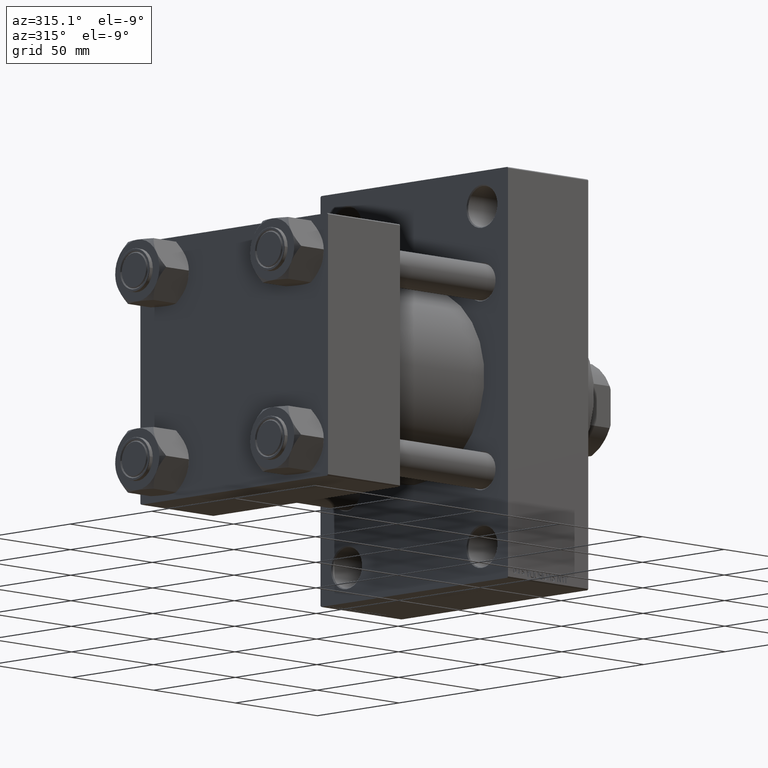
[diagram: clean part render]
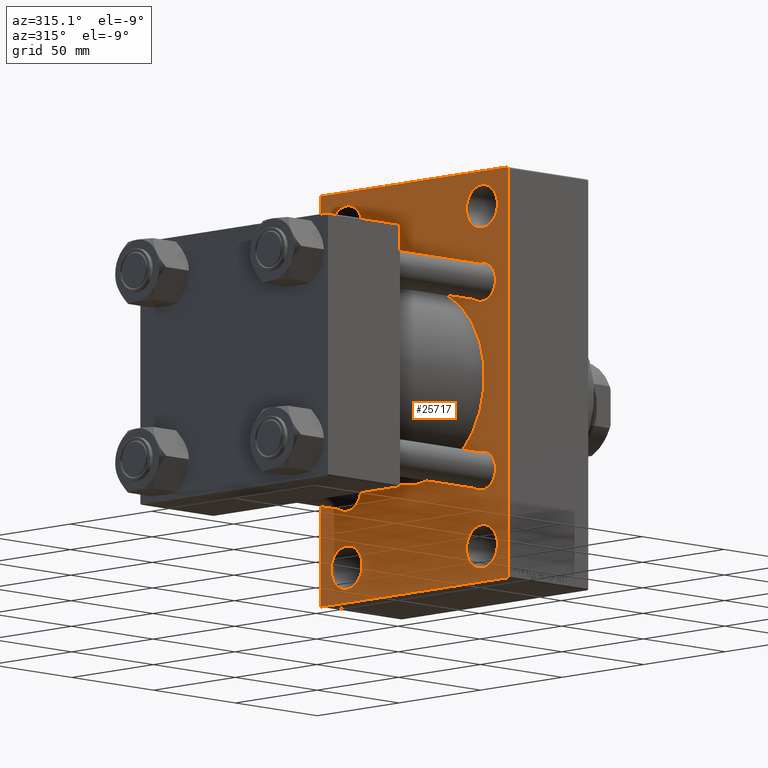
[diagram: same view with one face highlighted and labeled with its STEP entity id]
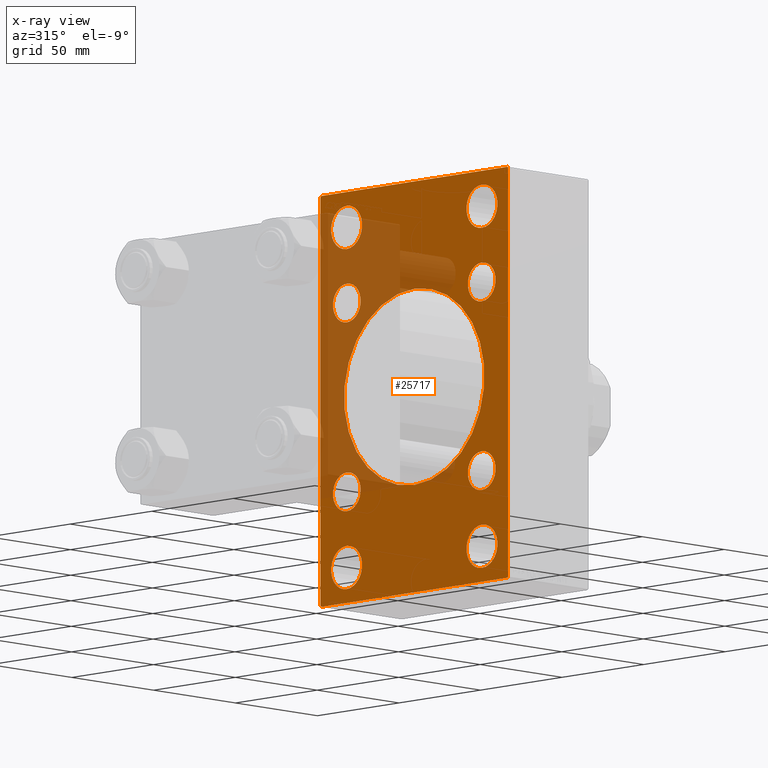
[diagram: x-ray of the same camera — body ghosted, the highlighted face saturated]
A machine part, auxiliary view. The second image highlights one B-rep face of the part: STEP entity #25717.
The next image is the same camera in x-ray: the body ghosted, the highlighted face saturated — about 29% of this face is hidden behind the body in this view.
In plain terms, the highlighted planar face has unit normal (-1, 0, 0).
Its self-contained STEP definition (entity closure, byte-faithful):
#127 = VECTOR ( 'NONE', #39006, 1000.000000000000000 ) ;
#258 = EDGE_CURVE ( 'NONE', #15630, #47628, #19418, .T. ) ;
#456 = CARTESIAN_POINT ( 'NONE',  ( 110.0000000000000000, -57.50000000000002132, 89.99999999999997158 ) ) ;
#541 = CARTESIAN_POINT ( 'NONE',  ( 110.0000000000000000, -2.602085213965210642E-15, 0.000000000000000000 ) ) ;
#705 = AXIS2_PLACEMENT_3D ( 'NONE', #22196, #3287, #29755 ) ;
#723 = CARTESIAN_POINT ( 'NONE',  ( 110.0000000000000000, 41.50000000000000711, 84.00000000000004263 ) ) ;
#919 = EDGE_LOOP ( 'NONE', ( #44951, #48679 ) ) ;
#965 = CARTESIAN_POINT ( 'NONE',  ( 110.0000000000000000, 57.49999999999997868, -89.49999999999990052 ) ) ;
#1277 = CIRCLE ( 'NONE', #11732, 8.500000000000007105 ) ;
#1500 = EDGE_CURVE ( 'NONE', #43542, #47628, #22656, .T. ) ;
#1765 = VERTEX_POINT ( 'NONE', #12989 ) ;
#1771 = CARTESIAN_POINT ( 'NONE',  ( 110.0000000000000000, 41.34999999999999432, -41.35000000000000142 ) ) ;
#1892 = VERTEX_POINT ( 'NONE', #16778 ) ;
#2313 = EDGE_CURVE ( 'NONE', #43542, #4402, #23711, .T. ) ;
#2659 = VERTEX_POINT ( 'NONE', #41440 ) ;
#2733 = ORIENTED_EDGE ( 'NONE', *, *, #19943, .T. ) ;
#2785 = CARTESIAN_POINT ( 'NONE',  ( 110.0000000000000000, 41.50000000000000711, -84.00000000000002842 ) ) ;
#2976 = DIRECTION ( 'NONE',  ( 0.000000000000000000, 0.000000000000000000, 1.000000000000000000 ) ) ;
#2995 = AXIS2_PLACEMENT_3D ( 'NONE', #42604, #35061, #42110 ) ;
#3216 = VERTEX_POINT ( 'NONE', #3713 ) ;
#3287 = DIRECTION ( 'NONE',  ( 1.000000000000000000, 0.000000000000000000, 0.000000000000000000 ) ) ;
#3698 = EDGE_CURVE ( 'NONE', #33412, #18731, #10149, .T. ) ;
#3713 = CARTESIAN_POINT ( 'NONE',  ( 110.0000000000000000, -41.49999999999999289, 64.99999999999997158 ) ) ;
#3907 = ORIENTED_EDGE ( 'NONE', *, *, #31876, .T. ) ;
#3925 = AXIS2_PLACEMENT_3D ( 'NONE', #25284, #43912, #9413 ) ;
#3981 = LINE ( 'NONE', #38489, #48590 ) ;
#4060 = CARTESIAN_POINT ( 'NONE',  ( 110.0000000000000000, 57.49999999999997868, -90.00000000000000000 ) ) ;
#4268 = CIRCLE ( 'NONE', #49270, 43.00000000000000000 ) ;
#4360 = CARTESIAN_POINT ( 'NONE',  ( 110.0000000000000000, -41.49999999999999289, -84.00000000000001421 ) ) ;
#4402 = VERTEX_POINT ( 'NONE', #19585 ) ;
#4692 = EDGE_CURVE ( 'NONE', #1892, #47810, #4268, .T. ) ;
#4845 = ORIENTED_EDGE ( 'NONE', *, *, #36340, .T. ) ;
#5544 = CIRCLE ( 'NONE', #3925, 8.500000000000007105 ) ;
#6816 = CARTESIAN_POINT ( 'NONE',  ( 110.0000000000000000, -41.49999999999999289, 74.50000000000001421 ) ) ;
#7108 = CARTESIAN_POINT ( 'NONE',  ( 110.0000000000000000, 41.34999999999999432, 41.35000000000000142 ) ) ;
#7244 = EDGE_LOOP ( 'NONE', ( #36986, #3907 ) ) ;
#7471 = EDGE_LOOP ( 'NONE', ( #21706, #13698, #27813, #38109, #29912, #31481, #20703, #40846 ) ) ;
#8104 = EDGE_CURVE ( 'NONE', #21327, #40085, #39759, .T. ) ;
#8445 = EDGE_CURVE ( 'NONE', #24011, #1765, #25275, .T. ) ;
#8903 = ORIENTED_EDGE ( 'NONE', *, *, #44741, .T. ) ;
#9413 = DIRECTION ( 'NONE',  ( 0.000000000000000000, 0.000000000000000000, 1.000000000000000000 ) ) ;
#9896 = CARTESIAN_POINT ( 'NONE',  ( 110.0000000000000000, 73.49999999999995737, 73.49999999999995737 ) ) ;
#9977 = VERTEX_POINT ( 'NONE', #16416 ) ;
#10149 = LINE ( 'NONE', #9896, #37213 ) ;
#10436 = EDGE_CURVE ( 'NONE', #39151, #2659, #3981, .T. ) ;
#11506 = CARTESIAN_POINT ( 'NONE',  ( 110.0000000000000000, 41.50000000000000711, 74.50000000000001421 ) ) ;
#11732 = AXIS2_PLACEMENT_3D ( 'NONE', #1771, #12850, #27974 ) ;
#11788 = EDGE_CURVE ( 'NONE', #31586, #17702, #39795, .T. ) ;
#11821 = CARTESIAN_POINT ( 'NONE',  ( 110.0000000000000000, 2.663896022368408223E-15, -43.00000000000000000 ) ) ;
#11950 = CARTESIAN_POINT ( 'NONE',  ( 110.0000000000000000, 41.50000000000000711, -74.50000000000000000 ) ) ;
#12277 = AXIS2_PLACEMENT_3D ( 'NONE', #25948, #13854, #21666 ) ;
#12626 = DIRECTION ( 'NONE',  ( 0.000000000000000000, 0.000000000000000000, -1.000000000000000000 ) ) ;
#12850 = DIRECTION ( 'NONE',  ( 1.000000000000000000, -0.000000000000000000, 0.000000000000000000 ) ) ;
#12989 = CARTESIAN_POINT ( 'NONE',  ( 110.0000000000000000, 41.50000000000000711, -64.99999999999995737 ) ) ;
#13000 = DIRECTION ( 'NONE',  ( 1.000000000000000000, -0.000000000000000000, 0.000000000000000000 ) ) ;
#13024 = DIRECTION ( 'NONE',  ( 0.000000000000000000, 0.000000000000000000, 1.000000000000000000 ) ) ;
#13049 = AXIS2_PLACEMENT_3D ( 'NONE', #7108, #26504, #15170 ) ;
#13375 = CARTESIAN_POINT ( 'NONE',  ( 110.0000000000000000, -57.50000000000002132, 89.49999999999994316 ) ) ;
#13581 = CARTESIAN_POINT ( 'NONE',  ( 110.0000000000000000, 41.50000000000000711, 74.50000000000001421 ) ) ;
#13698 = ORIENTED_EDGE ( 'NONE', *, *, #258, .T. ) ;
#13814 = VERTEX_POINT ( 'NONE', #14101 ) ;
#13854 = DIRECTION ( 'NONE',  ( 1.000000000000000000, -0.000000000000000000, 0.000000000000000000 ) ) ;
#13881 = CIRCLE ( 'NONE', #13049, 8.500000000000007105 ) ;
#13899 = EDGE_LOOP ( 'NONE', ( #27712, #36443 ) ) ;
#14101 = CARTESIAN_POINT ( 'NONE',  ( 110.0000000000000000, -41.34999999999998721, -49.85000000000002274 ) ) ;
#14124 = AXIS2_PLACEMENT_3D ( 'NONE', #11950, #31118, #46459 ) ;
#14269 = EDGE_CURVE ( 'NONE', #1765, #24011, #15743, .T. ) ;
#14393 = ORIENTED_EDGE ( 'NONE', *, *, #24627, .T. ) ;
#14436 = CARTESIAN_POINT ( 'NONE',  ( 110.0000000000000000, 41.34999999999999432, 49.85000000000001563 ) ) ;
#14638 = VECTOR ( 'NONE', #35050, 1000.000000000000000 ) ;
#14839 = CARTESIAN_POINT ( 'NONE',  ( 110.0000000000000000, 41.34999999999999432, -32.84999999999999432 ) ) ;
#14977 = LINE ( 'NONE', #23775, #45870 ) ;
#15002 = ORIENTED_EDGE ( 'NONE', *, *, #20964, .T. ) ;
#15170 = DIRECTION ( 'NONE',  ( 0.000000000000000000, 0.000000000000000000, 1.000000000000000000 ) ) ;
#15434 = CIRCLE ( 'NONE', #21874, 9.500000000000035527 ) ;
#15630 = VERTEX_POINT ( 'NONE', #33547 ) ;
#15743 = CIRCLE ( 'NONE', #14124, 9.500000000000035527 ) ;
#16416 = CARTESIAN_POINT ( 'NONE',  ( 110.0000000000000000, 41.34999999999999432, -49.85000000000001563 ) ) ;
#16676 = VERTEX_POINT ( 'NONE', #41028 ) ;
#16778 = CARTESIAN_POINT ( 'NONE',  ( 110.0000000000000000, -2.602085213965210642E-15, 43.00000000000000000 ) ) ;
#16880 = ORIENTED_EDGE ( 'NONE', *, *, #37246, .T. ) ;
#16905 = DIRECTION ( 'NONE',  ( 1.000000000000000000, -0.000000000000000000, 0.000000000000000000 ) ) ;
#17112 = CARTESIAN_POINT ( 'NONE',  ( 110.0000000000000000, 41.50000000000000711, 64.99999999999997158 ) ) ;
#17192 = EDGE_LOOP ( 'NONE', ( #45796, #41150 ) ) ;
#17198 = CARTESIAN_POINT ( 'NONE',  ( 110.0000000000000000, -41.49999999999999289, -74.49999999999998579 ) ) ;
#17290 = EDGE_LOOP ( 'NONE', ( #2733, #15002 ) ) ;
#17489 = VERTEX_POINT ( 'NONE', #21687 ) ;
#17702 = VERTEX_POINT ( 'NONE', #17112 ) ;
#18068 = VERTEX_POINT ( 'NONE', #37440 ) ;
#18102 = DIRECTION ( 'NONE',  ( 0.000000000000000000, 0.000000000000000000, 1.000000000000000000 ) ) ;
#18211 = DIRECTION ( 'NONE',  ( 0.000000000000000000, 0.000000000000000000, 1.000000000000000000 ) ) ;
#18731 = VERTEX_POINT ( 'NONE', #27394 ) ;
#19347 = VECTOR ( 'NONE', #41848, 1000.000000000000000 ) ;
#19418 = LINE ( 'NONE', #34784, #33866 ) ;
#19540 = FACE_BOUND ( 'NONE', #17192, .T. ) ;
#19585 = CARTESIAN_POINT ( 'NONE',  ( 110.0000000000000000, -56.99999999999998579, 89.99999999999997158 ) ) ;
#19686 = CIRCLE ( 'NONE', #26926, 8.500000000000007105 ) ;
#19820 = AXIS2_PLACEMENT_3D ( 'NONE', #22235, #33569, #18211 ) ;
#19943 = EDGE_CURVE ( 'NONE', #17489, #22736, #41541, .T. ) ;
#20169 = CARTESIAN_POINT ( 'NONE',  ( 110.0000000000000000, -73.49999999999957367, 73.50000000000059686 ) ) ;
#20278 = PLANE ( 'NONE',  #20863 ) ;
#20628 = ORIENTED_EDGE ( 'NONE', *, *, #30253, .T. ) ;
#20703 = ORIENTED_EDGE ( 'NONE', *, *, #41231, .T. ) ;
#20863 = AXIS2_PLACEMENT_3D ( 'NONE', #24313, #23822, #35903 ) ;
#20964 = EDGE_CURVE ( 'NONE', #22736, #17489, #24713, .T. ) ;
#21327 = VERTEX_POINT ( 'NONE', #30982 ) ;
#21666 = DIRECTION ( 'NONE',  ( 0.000000000000000000, 0.000000000000000000, 1.000000000000000000 ) ) ;
#21687 = CARTESIAN_POINT ( 'NONE',  ( 110.0000000000000000, -41.34999999999998721, 49.85000000000002274 ) ) ;
#21706 = ORIENTED_EDGE ( 'NONE', *, *, #29348, .T. ) ;
#21874 = AXIS2_PLACEMENT_3D ( 'NONE', #33173, #47506, #13024 ) ;
#22128 = DIRECTION ( 'NONE',  ( 1.000000000000000000, -0.000000000000000000, 0.000000000000000000 ) ) ;
#22196 = CARTESIAN_POINT ( 'NONE',  ( 110.0000000000000000, -2.602085213965210642E-15, 0.000000000000000000 ) ) ;
#22235 = CARTESIAN_POINT ( 'NONE',  ( 110.0000000000000000, -41.34999999999998721, 41.35000000000000853 ) ) ;
#22656 = LINE ( 'NONE', #456, #127 ) ;
#22663 = CIRCLE ( 'NONE', #29107, 9.500000000000035527 ) ;
#22736 = VERTEX_POINT ( 'NONE', #43390 ) ;
#23711 = LINE ( 'NONE', #20169, #14638 ) ;
#23775 = CARTESIAN_POINT ( 'NONE',  ( 110.0000000000000000, 57.49999999999997158, 89.99999999999998579 ) ) ;
#23822 = DIRECTION ( 'NONE',  ( -1.000000000000000000, 0.000000000000000000, -0.000000000000000000 ) ) ;
#23857 = ORIENTED_EDGE ( 'NONE', *, *, #8104, .T. ) ;
#24011 = VERTEX_POINT ( 'NONE', #2785 ) ;
#24052 = EDGE_CURVE ( 'NONE', #3216, #16676, #39262, .T. ) ;
#24170 = CIRCLE ( 'NONE', #34628, 9.500000000000035527 ) ;
#24313 = CARTESIAN_POINT ( 'NONE',  ( 110.0000000000000000, 0.000000000000000000, 0.000000000000000000 ) ) ;
#24405 = VERTEX_POINT ( 'NONE', #41206 ) ;
#24627 = EDGE_CURVE ( 'NONE', #39788, #9977, #5544, .T. ) ;
#24713 = CIRCLE ( 'NONE', #2995, 8.500000000000007105 ) ;
#24959 = EDGE_CURVE ( 'NONE', #47810, #1892, #38516, .T. ) ;
#25275 = CIRCLE ( 'NONE', #41418, 9.500000000000035527 ) ;
#25280 = DIRECTION ( 'NONE',  ( 0.000000000000000000, 0.7071067811865474617, -0.7071067811865474617 ) ) ;
#25284 = CARTESIAN_POINT ( 'NONE',  ( 110.0000000000000000, 41.34999999999999432, -41.35000000000000142 ) ) ;
#25610 = EDGE_LOOP ( 'NONE', ( #23857, #35627 ) ) ;
#25717 = ADVANCED_FACE ( 'NONE', ( #30155, #34653, #19540, #45246, #26120, #41479, #33921, #45492, #37700, #35651 ), #20278, .T. ) ;
#25948 = CARTESIAN_POINT ( 'NONE',  ( 110.0000000000000000, -41.34999999999998721, -41.35000000000000853 ) ) ;
#26120 = FACE_BOUND ( 'NONE', #17290, .T. ) ;
#26329 = EDGE_LOOP ( 'NONE', ( #20628, #4845 ) ) ;
#26504 = DIRECTION ( 'NONE',  ( 1.000000000000000000, -0.000000000000000000, 0.000000000000000000 ) ) ;
#26732 = LINE ( 'NONE', #4060, #19347 ) ;
#26926 = AXIS2_PLACEMENT_3D ( 'NONE', #29451, #22128, #18102 ) ;
#27394 = CARTESIAN_POINT ( 'NONE',  ( 110.0000000000000000, 57.49999999999997158, 89.49999999999995737 ) ) ;
#27712 = ORIENTED_EDGE ( 'NONE', *, *, #4692, .T. ) ;
#27760 = DIRECTION ( 'NONE',  ( 1.000000000000000000, 0.000000000000000000, 0.000000000000000000 ) ) ;
#27813 = ORIENTED_EDGE ( 'NONE', *, *, #1500, .F. ) ;
#27974 = DIRECTION ( 'NONE',  ( 0.000000000000000000, 0.000000000000000000, 1.000000000000000000 ) ) ;
#28036 = DIRECTION ( 'NONE',  ( 0.000000000000000000, 0.000000000000000000, 1.000000000000000000 ) ) ;
#28043 = DIRECTION ( 'NONE',  ( 1.000000000000000000, -0.000000000000000000, 0.000000000000000000 ) ) ;
#28118 = CARTESIAN_POINT ( 'NONE',  ( 110.0000000000000000, 41.50000000000000711, -74.50000000000000000 ) ) ;
#28227 = AXIS2_PLACEMENT_3D ( 'NONE', #31825, #28043, #41120 ) ;
#28351 = CARTESIAN_POINT ( 'NONE',  ( 110.0000000000000000, 57.49999999999997158, 89.99999999999998579 ) ) ;
#28819 = CARTESIAN_POINT ( 'NONE',  ( 110.0000000000000000, -57.50000000000002132, -89.49999999999991473 ) ) ;
#28994 = DIRECTION ( 'NONE',  ( 0.000000000000000000, 0.000000000000000000, 1.000000000000000000 ) ) ;
#29107 = AXIS2_PLACEMENT_3D ( 'NONE', #11506, #45775, #2976 ) ;
#29220 = EDGE_CURVE ( 'NONE', #40085, #21327, #24170, .T. ) ;
#29348 = EDGE_CURVE ( 'NONE', #2659, #15630, #26732, .T. ) ;
#29451 = CARTESIAN_POINT ( 'NONE',  ( 110.0000000000000000, -41.34999999999998721, -41.35000000000000853 ) ) ;
#29747 = DIRECTION ( 'NONE',  ( 1.000000000000000000, -0.000000000000000000, 0.000000000000000000 ) ) ;
#29755 = DIRECTION ( 'NONE',  ( 0.000000000000000000, 0.000000000000000000, -1.000000000000000000 ) ) ;
#29806 = ORIENTED_EDGE ( 'NONE', *, *, #45752, .T. ) ;
#29912 = ORIENTED_EDGE ( 'NONE', *, *, #29973, .F. ) ;
#29973 = EDGE_CURVE ( 'NONE', #33412, #4402, #14977, .T. ) ;
#30077 = CARTESIAN_POINT ( 'NONE',  ( 110.0000000000000000, 56.99999999999994316, 89.99999999999998579 ) ) ;
#30155 = FACE_BOUND ( 'NONE', #919, .T. ) ;
#30253 = EDGE_CURVE ( 'NONE', #46386, #24405, #44331, .T. ) ;
#30982 = CARTESIAN_POINT ( 'NONE',  ( 110.0000000000000000, -41.49999999999999289, -64.99999999999994316 ) ) ;
#31118 = DIRECTION ( 'NONE',  ( 1.000000000000000000, -0.000000000000000000, 0.000000000000000000 ) ) ;
#31481 = ORIENTED_EDGE ( 'NONE', *, *, #3698, .T. ) ;
#31586 = VERTEX_POINT ( 'NONE', #723 ) ;
#31825 = CARTESIAN_POINT ( 'NONE',  ( 110.0000000000000000, 41.34999999999999432, 41.35000000000000142 ) ) ;
#31876 = EDGE_CURVE ( 'NONE', #17702, #31586, #22663, .T. ) ;
#32264 = CARTESIAN_POINT ( 'NONE',  ( 110.0000000000000000, -41.49999999999999289, -74.49999999999998579 ) ) ;
#32985 = EDGE_CURVE ( 'NONE', #16676, #3216, #15434, .T. ) ;
#33173 = CARTESIAN_POINT ( 'NONE',  ( 110.0000000000000000, -41.49999999999999289, 74.50000000000001421 ) ) ;
#33412 = VERTEX_POINT ( 'NONE', #30077 ) ;
#33547 = CARTESIAN_POINT ( 'NONE',  ( 110.0000000000000000, -56.99999999999996447, -90.00000000000001421 ) ) ;
#33569 = DIRECTION ( 'NONE',  ( 1.000000000000000000, -0.000000000000000000, 0.000000000000000000 ) ) ;
#33866 = VECTOR ( 'NONE', #38067, 999.9999999999998863 ) ;
#33921 = FACE_BOUND ( 'NONE', #41004, .T. ) ;
#34628 = AXIS2_PLACEMENT_3D ( 'NONE', #17198, #35848, #28036 ) ;
#34653 = FACE_BOUND ( 'NONE', #25610, .T. ) ;
#34784 = CARTESIAN_POINT ( 'NONE',  ( 110.0000000000000000, -73.49999999999918998, -73.50000000000123634 ) ) ;
#34979 = AXIS2_PLACEMENT_3D ( 'NONE', #13581, #45048, #44055 ) ;
#35050 = DIRECTION ( 'NONE',  ( -0.000000000000000000, 0.7071067811865524577, 0.7071067811865426878 ) ) ;
#35061 = DIRECTION ( 'NONE',  ( 1.000000000000000000, -0.000000000000000000, 0.000000000000000000 ) ) ;
#35112 = DIRECTION ( 'NONE',  ( 0.000000000000000000, -1.000000000000000000, -1.206764157201257291E-16 ) ) ;
#35251 = AXIS2_PLACEMENT_3D ( 'NONE', #6816, #29747, #48860 ) ;
#35627 = ORIENTED_EDGE ( 'NONE', *, *, #29220, .T. ) ;
#35632 = CIRCLE ( 'NONE', #12277, 8.500000000000007105 ) ;
#35651 = FACE_OUTER_BOUND ( 'NONE', #7471, .T. ) ;
#35848 = DIRECTION ( 'NONE',  ( 1.000000000000000000, -0.000000000000000000, 0.000000000000000000 ) ) ;
#35903 = DIRECTION ( 'NONE',  ( -0.000000000000000000, 0.000000000000000000, 1.000000000000000000 ) ) ;
#36340 = EDGE_CURVE ( 'NONE', #24405, #46386, #13881, .T. ) ;
#36443 = ORIENTED_EDGE ( 'NONE', *, *, #24959, .T. ) ;
#36986 = ORIENTED_EDGE ( 'NONE', *, *, #11788, .T. ) ;
#37213 = VECTOR ( 'NONE', #25280, 1000.000000000000114 ) ;
#37246 = EDGE_CURVE ( 'NONE', #13814, #18068, #35632, .T. ) ;
#37440 = CARTESIAN_POINT ( 'NONE',  ( 110.0000000000000000, -41.34999999999998721, -32.85000000000000142 ) ) ;
#37700 = FACE_BOUND ( 'NONE', #13899, .T. ) ;
#38067 = DIRECTION ( 'NONE',  ( 0.000000000000000000, -0.7071067811865574537, 0.7071067811865376918 ) ) ;
#38109 = ORIENTED_EDGE ( 'NONE', *, *, #2313, .T. ) ;
#38489 = CARTESIAN_POINT ( 'NONE',  ( 110.0000000000000000, 73.49999999999916156, -73.50000000000122213 ) ) ;
#38516 = CIRCLE ( 'NONE', #705, 43.00000000000000000 ) ;
#38880 = EDGE_LOOP ( 'NONE', ( #29806, #16880 ) ) ;
#38969 = AXIS2_PLACEMENT_3D ( 'NONE', #32264, #16905, #28994 ) ;
#39006 = DIRECTION ( 'NONE',  ( 0.000000000000000000, 0.000000000000000000, -1.000000000000000000 ) ) ;
#39151 = VERTEX_POINT ( 'NONE', #965 ) ;
#39262 = CIRCLE ( 'NONE', #35251, 9.500000000000035527 ) ;
#39759 = CIRCLE ( 'NONE', #38969, 9.500000000000035527 ) ;
#39788 = VERTEX_POINT ( 'NONE', #14839 ) ;
#39795 = CIRCLE ( 'NONE', #34979, 9.500000000000035527 ) ;
#40085 = VERTEX_POINT ( 'NONE', #4360 ) ;
#40846 = ORIENTED_EDGE ( 'NONE', *, *, #10436, .T. ) ;
#41004 = EDGE_LOOP ( 'NONE', ( #14393, #8903 ) ) ;
#41028 = CARTESIAN_POINT ( 'NONE',  ( 110.0000000000000000, -41.49999999999999289, 84.00000000000004263 ) ) ;
#41120 = DIRECTION ( 'NONE',  ( 0.000000000000000000, 0.000000000000000000, 1.000000000000000000 ) ) ;
#41150 = ORIENTED_EDGE ( 'NONE', *, *, #8445, .T. ) ;
#41206 = CARTESIAN_POINT ( 'NONE',  ( 110.0000000000000000, 41.34999999999999432, 32.84999999999999432 ) ) ;
#41231 = EDGE_CURVE ( 'NONE', #18731, #39151, #48468, .T. ) ;
#41418 = AXIS2_PLACEMENT_3D ( 'NONE', #28118, #13000, #46497 ) ;
#41440 = CARTESIAN_POINT ( 'NONE',  ( 110.0000000000000000, 56.99999999999992895, -90.00000000000000000 ) ) ;
#41479 = FACE_BOUND ( 'NONE', #26329, .T. ) ;
#41541 = CIRCLE ( 'NONE', #19820, 8.500000000000007105 ) ;
#41848 = DIRECTION ( 'NONE',  ( 0.000000000000000000, -1.000000000000000000, -1.206764157201257045E-16 ) ) ;
#42110 = DIRECTION ( 'NONE',  ( 0.000000000000000000, 0.000000000000000000, 1.000000000000000000 ) ) ;
#42604 = CARTESIAN_POINT ( 'NONE',  ( 110.0000000000000000, -41.34999999999998721, 41.35000000000000853 ) ) ;
#42757 = DIRECTION ( 'NONE',  ( -0.000000000000000000, -0.7071067811865574537, -0.7071067811865376918 ) ) ;
#43390 = CARTESIAN_POINT ( 'NONE',  ( 110.0000000000000000, -41.34999999999998721, 32.85000000000000142 ) ) ;
#43542 = VERTEX_POINT ( 'NONE', #13375 ) ;
#43912 = DIRECTION ( 'NONE',  ( 1.000000000000000000, -0.000000000000000000, 0.000000000000000000 ) ) ;
#44055 = DIRECTION ( 'NONE',  ( 0.000000000000000000, 0.000000000000000000, 1.000000000000000000 ) ) ;
#44331 = CIRCLE ( 'NONE', #28227, 8.500000000000007105 ) ;
#44741 = EDGE_CURVE ( 'NONE', #9977, #39788, #1277, .T. ) ;
#44951 = ORIENTED_EDGE ( 'NONE', *, *, #32985, .T. ) ;
#45048 = DIRECTION ( 'NONE',  ( 1.000000000000000000, -0.000000000000000000, 0.000000000000000000 ) ) ;
#45246 = FACE_BOUND ( 'NONE', #7244, .T. ) ;
#45492 = FACE_BOUND ( 'NONE', #38880, .T. ) ;
#45752 = EDGE_CURVE ( 'NONE', #18068, #13814, #19686, .T. ) ;
#45775 = DIRECTION ( 'NONE',  ( 1.000000000000000000, -0.000000000000000000, 0.000000000000000000 ) ) ;
#45796 = ORIENTED_EDGE ( 'NONE', *, *, #14269, .T. ) ;
#45870 = VECTOR ( 'NONE', #35112, 1000.000000000000000 ) ;
#46386 = VERTEX_POINT ( 'NONE', #14436 ) ;
#46459 = DIRECTION ( 'NONE',  ( 0.000000000000000000, 0.000000000000000000, 1.000000000000000000 ) ) ;
#46497 = DIRECTION ( 'NONE',  ( 0.000000000000000000, 0.000000000000000000, 1.000000000000000000 ) ) ;
#46962 = VECTOR ( 'NONE', #47715, 1000.000000000000000 ) ;
#47506 = DIRECTION ( 'NONE',  ( 1.000000000000000000, -0.000000000000000000, 0.000000000000000000 ) ) ;
#47628 = VERTEX_POINT ( 'NONE', #28819 ) ;
#47715 = DIRECTION ( 'NONE',  ( 0.000000000000000000, 3.854941057726238467E-17, -1.000000000000000000 ) ) ;
#47810 = VERTEX_POINT ( 'NONE', #11821 ) ;
#48468 = LINE ( 'NONE', #28351, #46962 ) ;
#48590 = VECTOR ( 'NONE', #42757, 999.9999999999998863 ) ;
#48679 = ORIENTED_EDGE ( 'NONE', *, *, #24052, .T. ) ;
#48860 = DIRECTION ( 'NONE',  ( 0.000000000000000000, 0.000000000000000000, 1.000000000000000000 ) ) ;
#49270 = AXIS2_PLACEMENT_3D ( 'NONE', #541, #27760, #12626 ) ;